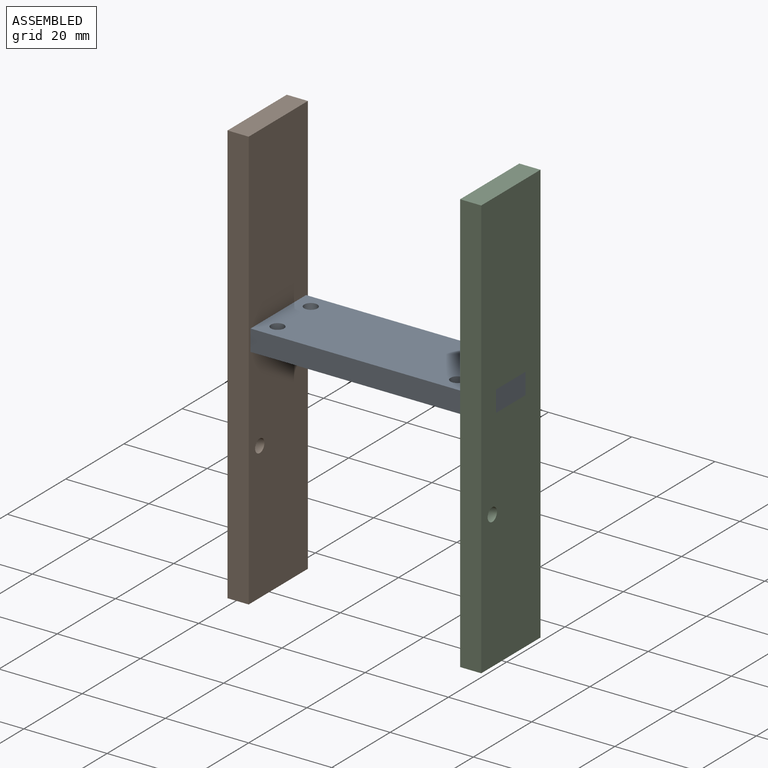
[diagram: assembled view]
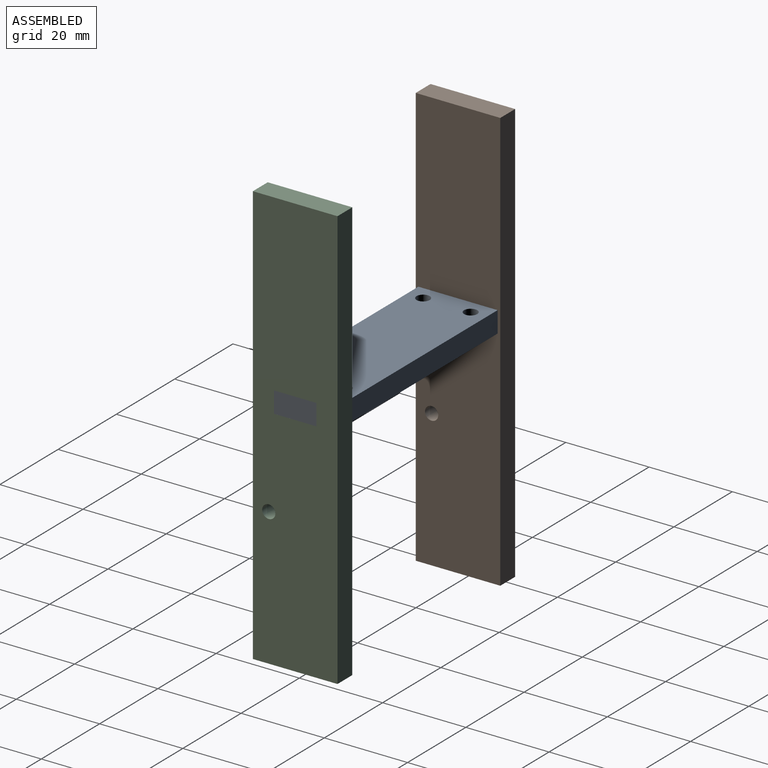
[diagram: assembled view, second angle]
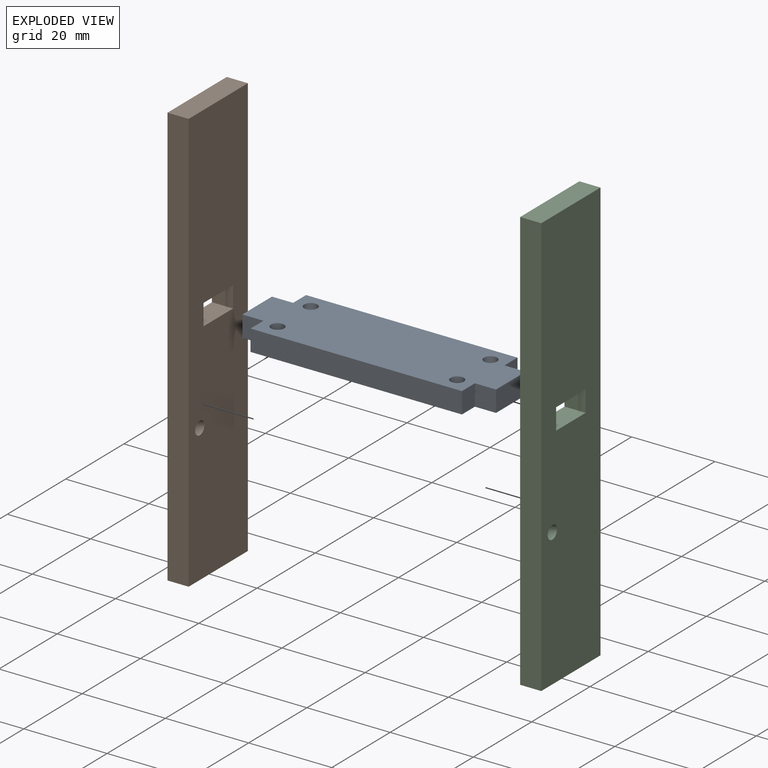
[diagram: exploded view]
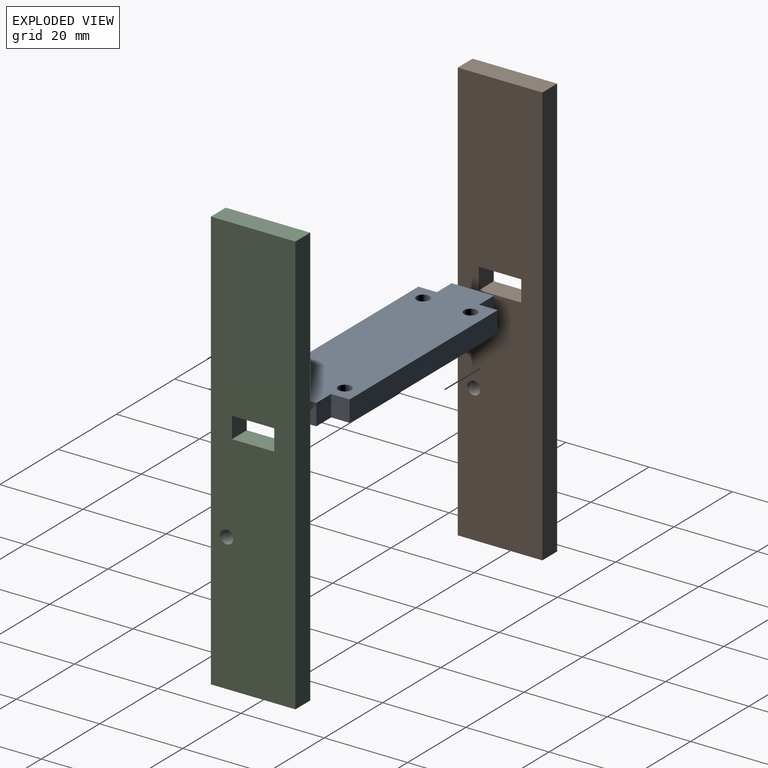
[diagram: exploded view, second angle]
ASSEMBLY  parts=3 mates=2
PART A: 18 faces, bbox 61x19.1x5.1 mm
  f0: plane 5.08x5.08mm, normal (0,-1,0), area 25.8mm2, adj f1,f14,f16,f17
  f1: plane 5.08x4.45mm, normal (-1,0,0), area 22.6mm2, adj f0,f2,f16,f17
  f2: plane 50.8x5.08mm, normal (0,-1,0), area 258.1mm2, adj f1,f3,f16,f17
  f3: plane 5.08x4.45mm, normal (1,0,0), area 22.6mm2, adj f2,f4,f16,f17
  f4: plane 5.08x5.08mm, normal (0,-1,0), area 25.8mm2, adj f3,f5,f16,f17
  f5: plane 10.16x5.08mm, normal (1,0,0), area 51.6mm2, adj f4,f6,f16,f17
  f6: plane 5.08x5.08mm, normal (0,1,0), area 25.8mm2, adj f5,f7,f16,f17
  f7: plane 5.08x4.45mm, normal (1,0,0), area 22.6mm2, adj f6,f8,f16,f17
  f8: plane 50.8x5.08mm, normal (0,1,0), area 258.1mm2, adj f7,f9,f16,f17
  f9: plane 5.08x4.45mm, normal (-1,0,0), area 22.6mm2, adj f8,f10,f16,f17
  f10: plane 5.08x5.08mm, normal (0,1,0), area 25.8mm2, adj f9,f14,f16,f17
  f11: cylinder r=1.59mm len=5.08mm, axis (0,0,-1), area 50.7mm2, adj f16,f17
  f12: cylinder r=1.59mm len=5.08mm, axis (0,0,-1), area 50.7mm2, adj f16,f17
  f13: cylinder r=1.59mm len=5.08mm, axis (0,0,-1), area 50.7mm2, adj f16,f17
  f14: plane 10.16x5.08mm, normal (-1,0,0), area 51.6mm2, adj f0,f10,f16,f17
  f15: cylinder r=1.59mm len=5.08mm, axis (0,0,-1), area 50.7mm2, adj f16,f17
  f16: plane 60.96x19.05mm, normal (0,0,1), area 1039.3mm2, adj f0,f1,f2,f3,f4,f5,f6,f7
  f17: plane 60.96x19.05mm, normal (0,0,-1), area 1039.3mm2, adj f0,f1,f2,f3,f4,f5,f6,f7
PART B: 11 faces, bbox 20.3x101.6x5.1 mm
  f0: plane 5.08x5.08mm, normal (1,0,0), area 25.8mm2, adj f1,f6,f9,f10
  f1: plane 10.16x5.08mm, normal (0,-1,0), area 51.6mm2, adj f0,f2,f9,f10
  f2: plane 5.08x5.08mm, normal (-1,0,0), area 25.8mm2, adj f1,f6,f9,f10
  f3: plane 101.6x5.08mm, normal (1,0,0), area 516.1mm2, adj f4,f7,f9,f10
  f4: plane 20.32x5.08mm, normal (0,1,0), area 103.2mm2, adj f3,f5,f9,f10
  f5: plane 101.6x5.08mm, normal (-1,0,0), area 516.1mm2, adj f4,f7,f9,f10
  f6: plane 10.16x5.08mm, normal (0,1,0), area 51.6mm2, adj f0,f2,f9,f10
  f7: plane 20.32x5.08mm, normal (0,-1,0), area 103.2mm2, adj f3,f5,f9,f10
  f8: cylinder r=1.59mm len=5.08mm, axis (0,0,-1), area 50.7mm2, adj f9,f10
  f9: plane 101.6x20.32mm, normal (0,0,1), area 2005mm2, adj f0,f1,f2,f3,f4,f5,f6,f7
  f10: plane 101.6x20.32mm, normal (0,0,-1), area 2005mm2, adj f0,f1,f2,f3,f4,f5,f6,f7
PART C: same geometry as B
PLACE A t=(5.03,0.22,-0.34)mm
PLACE B rot(axis=(-0.58,-0.58,0.58),120deg) t=(-74.74,-5.93,-21.93)mm
PLACE C rot(axis=(-0.58,-0.58,0.58),120deg) t=(-18.86,-5.93,-21.93)mm
MATE fastened B.f9 <-> A.f14  axis (-1,0,0) through (-79.82,39.8,2.2)mm
MATE fastened C.f10 <-> A.f5  axis (1,0,0) through (-18.86,39.8,2.2)mm
